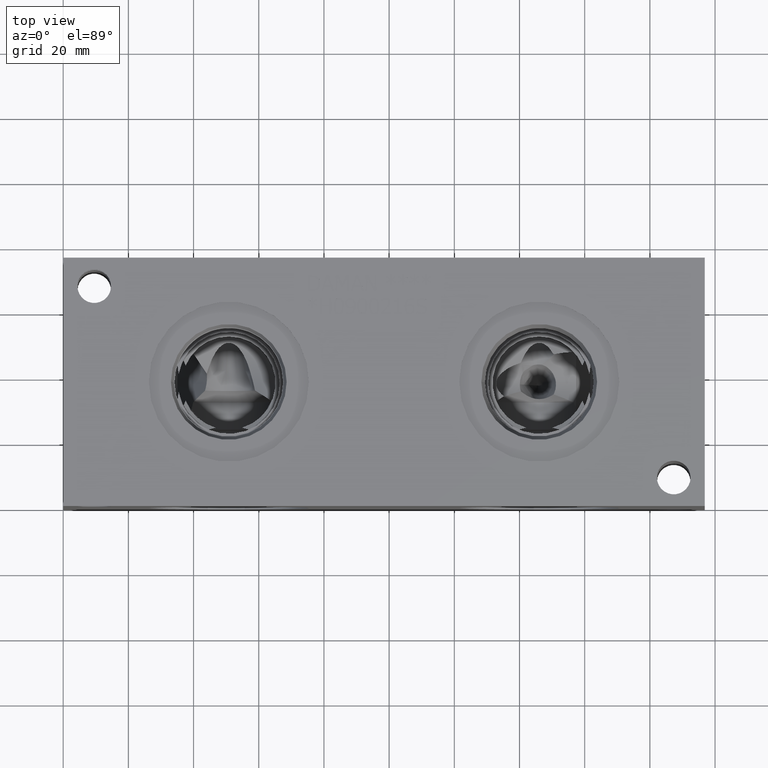
[diagram: clean part render]
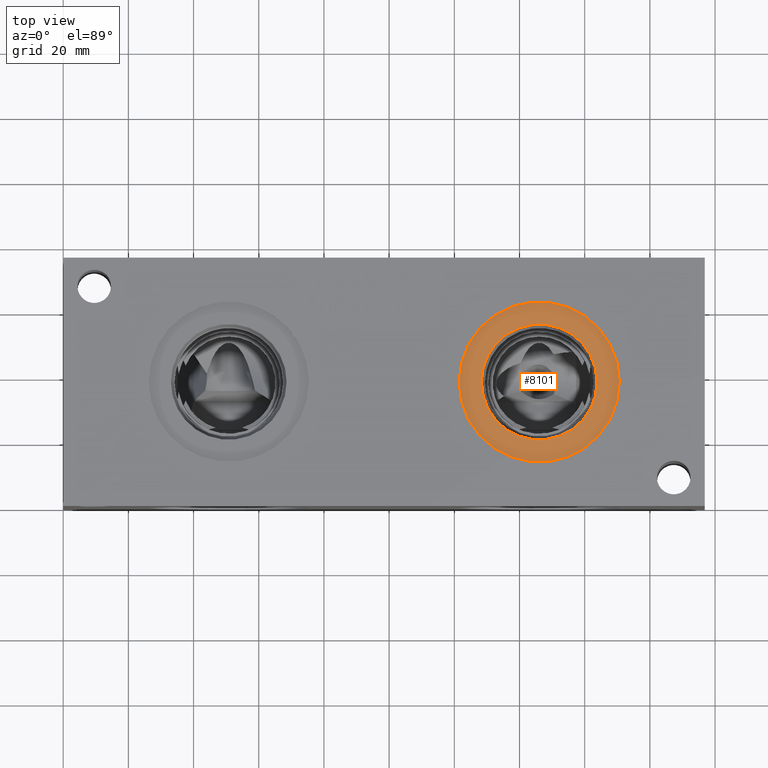
[diagram: same view with one face highlighted and labeled with its STEP entity id]
A machine part, top view. The second image highlights one B-rep face of the part: STEP entity #8101.
In plain terms, the highlighted planar face has unit normal (0, 0, 1).
Its self-contained STEP definition (entity closure, byte-faithful):
#201=CIRCLE('',#8517,24.5618);
#202=CIRCLE('',#8518,24.5618);
#203=CIRCLE('',#8519,17.7546);
#279=FACE_BOUND('',#1514,.T.);
#1066=FACE_OUTER_BOUND('',#1513,.T.);
#1513=EDGE_LOOP('',(#6992,#6993));
#1514=EDGE_LOOP('',(#6994));
#3704=VERTEX_POINT('',#14219);
#3705=VERTEX_POINT('',#14220);
#3706=VERTEX_POINT('',#14223);
#4822=EDGE_CURVE('',#3704,#3705,#201,.T.);
#4823=EDGE_CURVE('',#3705,#3704,#202,.T.);
#4824=EDGE_CURVE('',#3706,#3706,#203,.T.);
#6992=ORIENTED_EDGE('',*,*,#4822,.T.);
#6993=ORIENTED_EDGE('',*,*,#4823,.T.);
#6994=ORIENTED_EDGE('',*,*,#4824,.F.);
#7402=PLANE('',#8516);
#8101=ADVANCED_FACE('',(#1066,#279),#7402,.T.);
#8516=AXIS2_PLACEMENT_3D('',#14218,#10012,#10013);
#8517=AXIS2_PLACEMENT_3D('',#14221,#10014,#10015);
#8518=AXIS2_PLACEMENT_3D('',#14222,#10016,#10017);
#8519=AXIS2_PLACEMENT_3D('',#14224,#10018,#10019);
#10012=DIRECTION('center_axis',(0.,0.,1.));
#10013=DIRECTION('ref_axis',(1.,0.,0.));
#10014=DIRECTION('center_axis',(0.,0.,1.));
#10015=DIRECTION('ref_axis',(1.,0.,0.));
#10016=DIRECTION('center_axis',(0.,0.,1.));
#10017=DIRECTION('ref_axis',(1.,0.,0.));
#10018=DIRECTION('center_axis',(0.,0.,1.));
#10019=DIRECTION('ref_axis',(1.,0.,0.));
#14218=CARTESIAN_POINT('Origin',(146.05,38.1,75.4126));
#14219=CARTESIAN_POINT('',(170.6118,38.1,75.4126));
#14220=CARTESIAN_POINT('',(121.4882,38.1,75.4126));
#14221=CARTESIAN_POINT('Origin',(146.05,38.1,75.4126));
#14222=CARTESIAN_POINT('Origin',(146.05,38.1,75.4126));
#14223=CARTESIAN_POINT('',(128.2954,38.1,75.4126));
#14224=CARTESIAN_POINT('Origin',(146.05,38.1,75.4126));